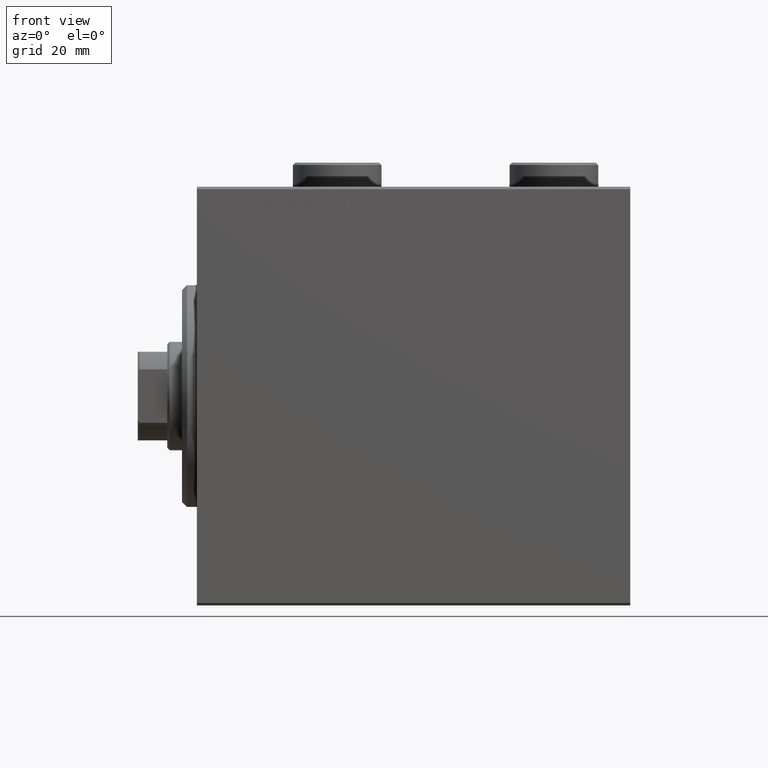
[diagram: clean part render]
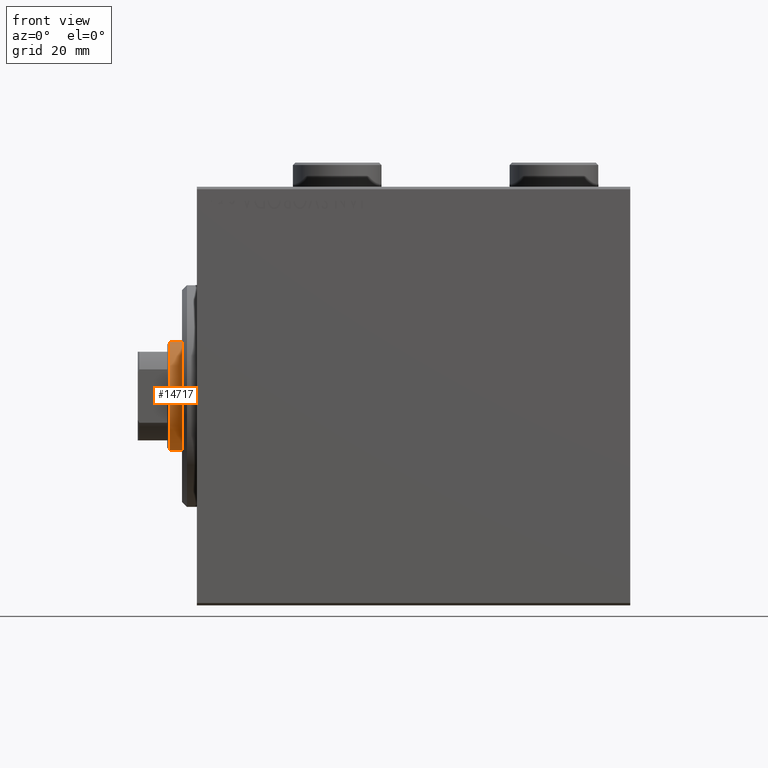
[diagram: same view with one face highlighted and labeled with its STEP entity id]
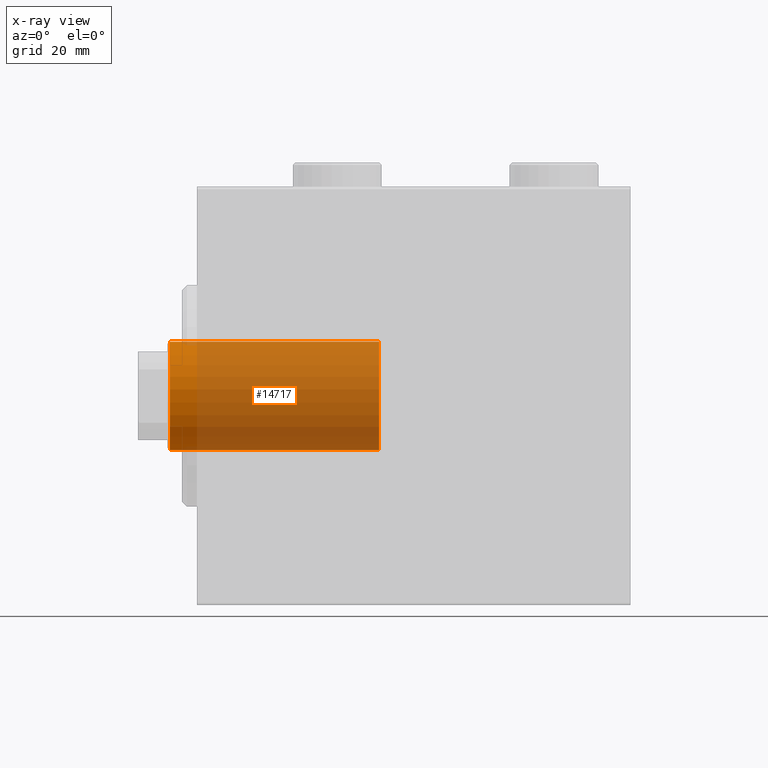
[diagram: x-ray of the same camera — body ghosted, the highlighted face saturated]
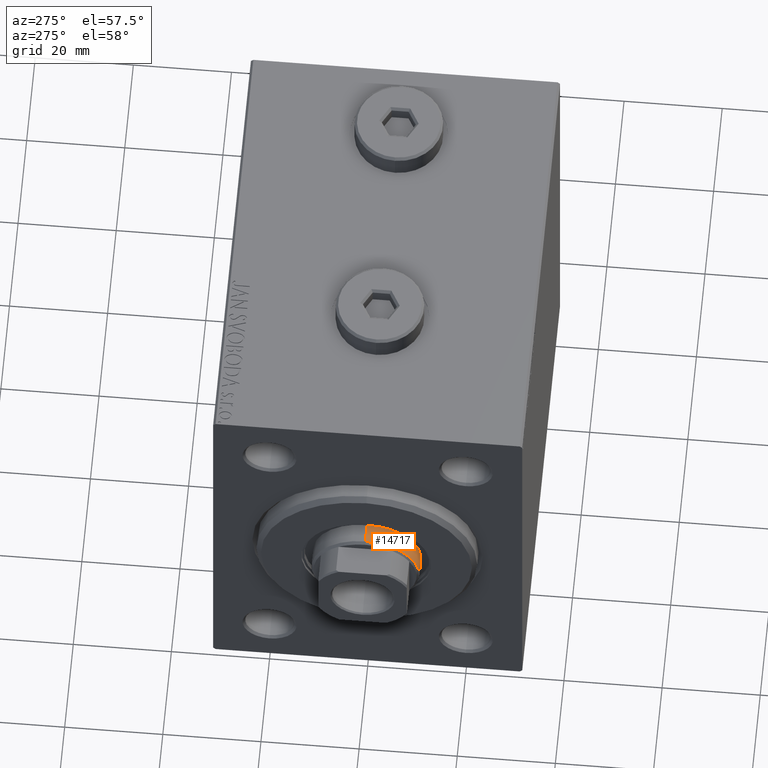
[diagram: same view with one face highlighted and labeled with its STEP entity id]
A machine part, front view. The second image highlights one B-rep face of the part: STEP entity #14717.
The next image is the same camera in x-ray: the body ghosted, the highlighted face saturated — about 88% of this face is hidden behind the body in this view.
A second angle (auxiliary view) of the same face is appended — the face is thin or edge-on in the first view.
In plain terms, the highlighted cylindrical surface (partial cylindrical patch) has radius 11 mm, axis along (1, -0, -0).
Its self-contained STEP definition (entity closure, byte-faithful):
#905 = EDGE_CURVE ( 'NONE', #23049, #38805, #23479, .T. ) ;
#2377 = AXIS2_PLACEMENT_3D ( 'NONE', #10728, #24100, #34696 ) ;
#4421 = VECTOR ( 'NONE', #42787, 1000.000000000000000 ) ;
#4568 = CARTESIAN_POINT ( 'NONE',  ( 0.000000000000000000, 0.000000000000000000, 81.49999999999997158 ) ) ;
#4729 = LINE ( 'NONE', #43231, #4421 ) ;
#5869 = ORIENTED_EDGE ( 'NONE', *, *, #9983, .T. ) ;
#6670 = VERTEX_POINT ( 'NONE', #7910 ) ;
#7326 = VECTOR ( 'NONE', #29410, 1000.000000000000000 ) ;
#7910 = CARTESIAN_POINT ( 'NONE',  ( -11.00000000000000000, 0.000000000000000000, 81.49999999999997158 ) ) ;
#9983 = EDGE_CURVE ( 'NONE', #6670, #23049, #4729, .T. ) ;
#10355 = ORIENTED_EDGE ( 'NONE', *, *, #905, .T. ) ;
#10728 = CARTESIAN_POINT ( 'NONE',  ( 0.000000000000000000, 0.000000000000000000, 81.99999999999998579 ) ) ;
#11486 = CARTESIAN_POINT ( 'NONE',  ( 11.00000000000000000, 1.347111479062088405E-15, 39.00000000000000000 ) ) ;
#11594 = CIRCLE ( 'NONE', #37357, 11.00000000000000000 ) ;
#13512 = FACE_OUTER_BOUND ( 'NONE', #28935, .T. ) ;
#14717 = ADVANCED_FACE ( 'NONE', ( #13512 ), #42287, .T. ) ;
#15028 = VERTEX_POINT ( 'NONE', #35531 ) ;
#15191 = DIRECTION ( 'NONE',  ( 0.000000000000000000, 0.000000000000000000, -1.000000000000000000 ) ) ;
#15348 = CARTESIAN_POINT ( 'NONE',  ( 11.00000000000000000, 1.347111479062088405E-15, 81.99999999999998579 ) ) ;
#19036 = LINE ( 'NONE', #15348, #7326 ) ;
#19249 = ORIENTED_EDGE ( 'NONE', *, *, #34898, .T. ) ;
#23049 = VERTEX_POINT ( 'NONE', #42527 ) ;
#23479 = CIRCLE ( 'NONE', #38923, 11.00000000000000000 ) ;
#24100 = DIRECTION ( 'NONE',  ( -0.000000000000000000, -0.000000000000000000, -1.000000000000000000 ) ) ;
#25911 = DIRECTION ( 'NONE',  ( 1.000000000000000000, 0.000000000000000000, 0.000000000000000000 ) ) ;
#28935 = EDGE_LOOP ( 'NONE', ( #32144, #19249, #5869, #10355 ) ) ;
#29410 = DIRECTION ( 'NONE',  ( -0.000000000000000000, -0.000000000000000000, -1.000000000000000000 ) ) ;
#32144 = ORIENTED_EDGE ( 'NONE', *, *, #39949, .F. ) ;
#34696 = DIRECTION ( 'NONE',  ( -1.000000000000000000, 0.000000000000000000, 0.000000000000000000 ) ) ;
#34898 = EDGE_CURVE ( 'NONE', #15028, #6670, #11594, .T. ) ;
#35531 = CARTESIAN_POINT ( 'NONE',  ( 11.00000000000000000, 1.347111479062088405E-15, 81.49999999999997158 ) ) ;
#36373 = DIRECTION ( 'NONE',  ( 1.000000000000000000, 0.000000000000000000, 0.000000000000000000 ) ) ;
#37357 = AXIS2_PLACEMENT_3D ( 'NONE', #4568, #15191, #36373 ) ;
#38805 = VERTEX_POINT ( 'NONE', #11486 ) ;
#38923 = AXIS2_PLACEMENT_3D ( 'NONE', #39501, #39734, #25911 ) ;
#39501 = CARTESIAN_POINT ( 'NONE',  ( 0.000000000000000000, 0.000000000000000000, 39.00000000000000000 ) ) ;
#39734 = DIRECTION ( 'NONE',  ( 0.000000000000000000, 0.000000000000000000, 1.000000000000000000 ) ) ;
#39949 = EDGE_CURVE ( 'NONE', #15028, #38805, #19036, .T. ) ;
#42287 = CYLINDRICAL_SURFACE ( 'NONE', #2377, 11.00000000000000000 ) ;
#42527 = CARTESIAN_POINT ( 'NONE',  ( -11.00000000000000000, 0.000000000000000000, 39.00000000000000000 ) ) ;
#42787 = DIRECTION ( 'NONE',  ( -0.000000000000000000, -0.000000000000000000, -1.000000000000000000 ) ) ;
#43231 = CARTESIAN_POINT ( 'NONE',  ( -11.00000000000000000, 0.000000000000000000, 81.99999999999998579 ) ) ;